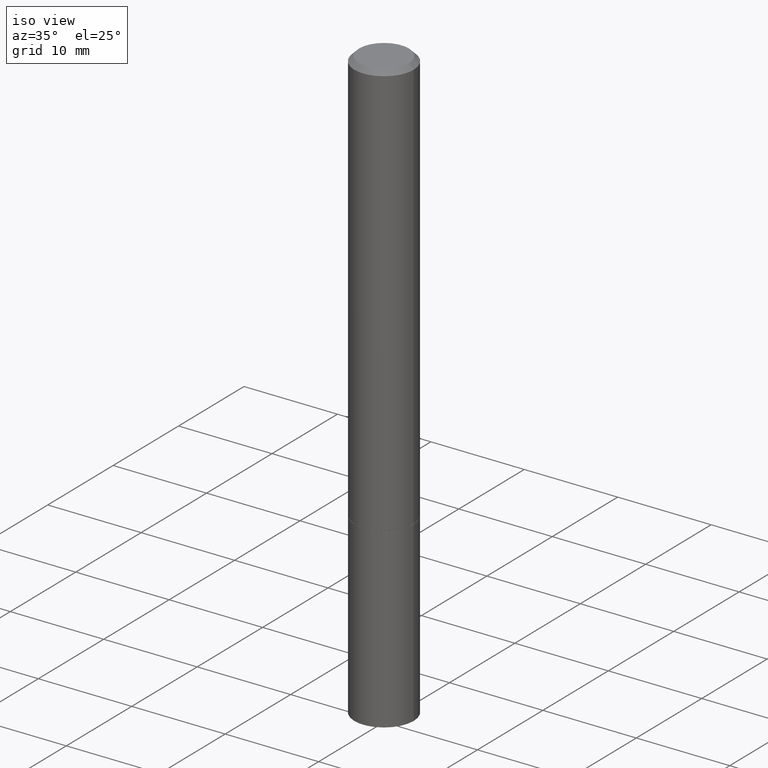
[diagram: clean part render]
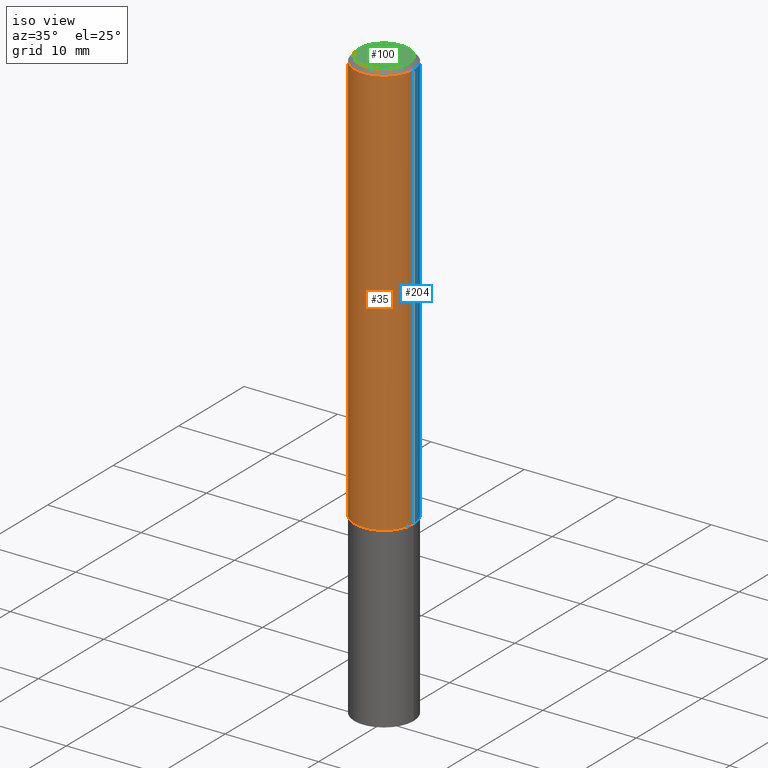
[diagram: same view with three faces highlighted in distinct colors, each labeled with its STEP entity id]
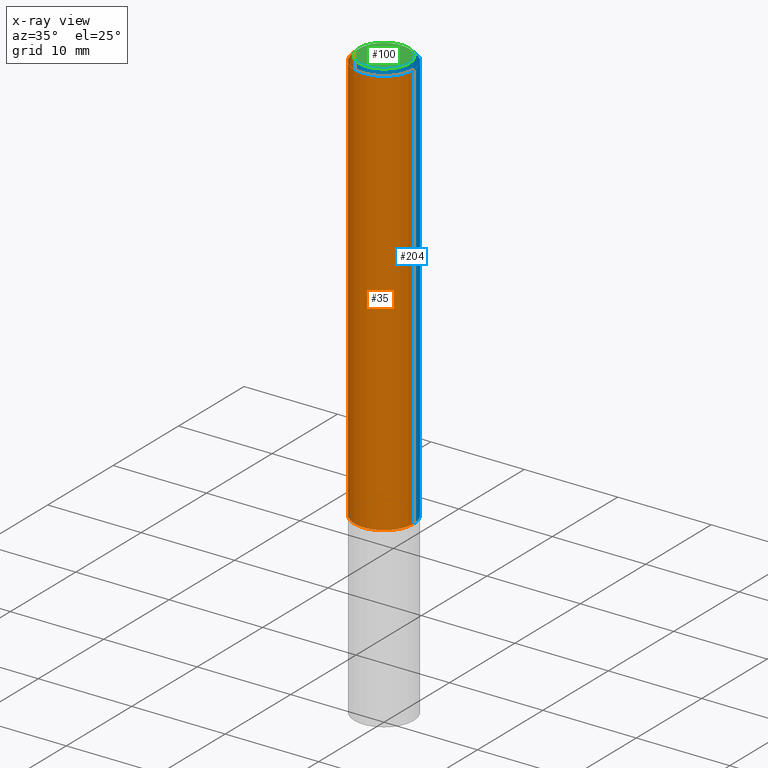
[diagram: x-ray of the same camera — body ghosted, the three highlighted faces saturated]
A machine part, iso view with three faces highlighted in distinct colors.
The next image is the same camera in x-ray (body ghosted, the three faces saturated) — at least one of them is partly hidden behind the body in this view.
Their STEP definitions:

[orange] entity #35 — the highlighted cylindrical surface (edge-blend (fillet) strip) has radius 3.175 mm, axis along (-0, 0, 1).
#10 = AXIS2_PLACEMENT_3D ( 'NONE', #185, #224, #231 ) ;
#14 = CARTESIAN_POINT ( 'NONE',  ( 0.1250000000000000000, -6.979471196347445792E-15, -1.749000000000000110 ) ) ;
#35 = ADVANCED_FACE ( 'NONE', ( #172 ), #125, .T. ) ;
#45 = VECTOR ( 'NONE', #350, 39.37007874015748143 ) ;
#47 = CARTESIAN_POINT ( 'NONE',  ( 0.1249999999999998751, -8.728703347107825500E-16, 6.095220969744913435E-30 ) ) ;
#63 = ORIENTED_EDGE ( 'NONE', *, *, #103, .F. ) ;
#85 = CARTESIAN_POINT ( 'NONE',  ( 0.1249999999999997641, -9.273918764983027713E-16, -0.02000000000000003858 ) ) ;
#103 = EDGE_CURVE ( 'NONE', #302, #151, #273, .T. ) ;
#115 = VERTEX_POINT ( 'NONE', #85 ) ;
#117 = CARTESIAN_POINT ( 'NONE',  ( -0.1250000000000000000, -2.200036824506634488E-15, -1.749000000000000110 ) ) ;
#121 = EDGE_CURVE ( 'NONE', #200, #115, #323, .T. ) ;
#123 = CIRCLE ( 'NONE', #342, 0.1250000000000000000 ) ;
#125 = CYLINDRICAL_SURFACE ( 'NONE', #216, 0.1249999999999998751 ) ;
#131 = DIRECTION ( 'NONE',  ( -2.445468806185136877E-29, 3.491481338843145188E-15, 1.000000000000000000 ) ) ;
#135 = CARTESIAN_POINT ( 'NONE',  ( -0.1249999999999998751, 8.881784197001243449E-16, -6.148668862818626622E-30 ) ) ;
#139 = ORIENTED_EDGE ( 'NONE', *, *, #343, .F. ) ;
#151 = VERTEX_POINT ( 'NONE', #267 ) ;
#172 = FACE_OUTER_BOUND ( 'NONE', #257, .T. ) ;
#174 = DIRECTION ( 'NONE',  ( 1.000000000000000000, -6.982962677686267499E-15, 4.876176775795935793E-29 ) ) ;
#176 = DIRECTION ( 'NONE',  ( -2.445468806185136597E-29, 3.491481338843145583E-15, 1.000000000000000000 ) ) ;
#182 = CIRCLE ( 'NONE', #10, 0.1249999999999997641 ) ;
#185 = CARTESIAN_POINT ( 'NONE',  ( 4.890937612370282792E-31, -6.982962677686303935E-17, -0.02000000000000003858 ) ) ;
#197 = DIRECTION ( 'NONE',  ( 1.000000000000000000, -6.982962677686270655E-15, 0.000000000000000000 ) ) ;
#200 = VERTEX_POINT ( 'NONE', #14 ) ;
#216 = AXIS2_PLACEMENT_3D ( 'NONE', #344, #340, #174 ) ;
#223 = VECTOR ( 'NONE', #131, 39.37007874015748143 ) ;
#224 = DIRECTION ( 'NONE',  ( -2.445468806185136597E-29, 3.491481338843145583E-15, 1.000000000000000000 ) ) ;
#231 = DIRECTION ( 'NONE',  ( 1.000000000000000000, -6.982962677686266711E-15, 0.000000000000000000 ) ) ;
#252 = ORIENTED_EDGE ( 'NONE', *, *, #314, .T. ) ;
#254 = CARTESIAN_POINT ( 'NONE',  ( 4.277124942017804562E-29, -6.106600861636661664E-15, -1.749000000000000110 ) ) ;
#257 = EDGE_LOOP ( 'NONE', ( #63, #252, #261, #139 ) ) ;
#261 = ORIENTED_EDGE ( 'NONE', *, *, #121, .T. ) ;
#267 = CARTESIAN_POINT ( 'NONE',  ( -0.1249999999999997641, 8.030407079339185615E-16, -0.02000000000000003858 ) ) ;
#273 = LINE ( 'NONE', #135, #45 ) ;
#302 = VERTEX_POINT ( 'NONE', #117 ) ;
#314 = EDGE_CURVE ( 'NONE', #302, #200, #123, .T. ) ;
#323 = LINE ( 'NONE', #47, #223 ) ;
#340 = DIRECTION ( 'NONE',  ( -2.445468806185136597E-29, 3.491481338843145583E-15, 1.000000000000000000 ) ) ;
#342 = AXIS2_PLACEMENT_3D ( 'NONE', #254, #176, #197 ) ;
#343 = EDGE_CURVE ( 'NONE', #151, #115, #182, .T. ) ;
#344 = CARTESIAN_POINT ( 'NONE',  ( 0.000000000000000000, 0.000000000000000000, 0.000000000000000000 ) ) ;
#350 = DIRECTION ( 'NONE',  ( -2.445468806185136877E-29, 3.491481338843145188E-15, 1.000000000000000000 ) ) ;

[blue] entity #204 — the highlighted cylindrical surface (edge-blend (fillet) strip) has radius 3.175 mm, axis along (-0, 0, 1).
#9 = ORIENTED_EDGE ( 'NONE', *, *, #103, .T. ) ;
#14 = CARTESIAN_POINT ( 'NONE',  ( 0.1250000000000000000, -6.979471196347445792E-15, -1.749000000000000110 ) ) ;
#34 = ORIENTED_EDGE ( 'NONE', *, *, #284, .T. ) ;
#43 = DIRECTION ( 'NONE',  ( -2.445468806185136597E-29, 3.491481338843145583E-15, 1.000000000000000000 ) ) ;
#45 = VECTOR ( 'NONE', #350, 39.37007874015748143 ) ;
#47 = CARTESIAN_POINT ( 'NONE',  ( 0.1249999999999998751, -8.728703347107825500E-16, 6.095220969744913435E-30 ) ) ;
#52 = CIRCLE ( 'NONE', #101, 0.1249999999999997641 ) ;
#54 = EDGE_CURVE ( 'NONE', #115, #151, #52, .T. ) ;
#65 = ORIENTED_EDGE ( 'NONE', *, *, #54, .F. ) ;
#85 = CARTESIAN_POINT ( 'NONE',  ( 0.1249999999999997641, -9.273918764983027713E-16, -0.02000000000000003858 ) ) ;
#96 = DIRECTION ( 'NONE',  ( 1.000000000000000000, -6.982962677686266711E-15, 0.000000000000000000 ) ) ;
#101 = AXIS2_PLACEMENT_3D ( 'NONE', #347, #43, #96 ) ;
#103 = EDGE_CURVE ( 'NONE', #302, #151, #273, .T. ) ;
#105 = DIRECTION ( 'NONE',  ( -2.445468806185136597E-29, 3.491481338843145583E-15, 1.000000000000000000 ) ) ;
#115 = VERTEX_POINT ( 'NONE', #85 ) ;
#117 = CARTESIAN_POINT ( 'NONE',  ( -0.1250000000000000000, -2.200036824506634488E-15, -1.749000000000000110 ) ) ;
#121 = EDGE_CURVE ( 'NONE', #200, #115, #323, .T. ) ;
#131 = DIRECTION ( 'NONE',  ( -2.445468806185136877E-29, 3.491481338843145188E-15, 1.000000000000000000 ) ) ;
#132 = CARTESIAN_POINT ( 'NONE',  ( 0.000000000000000000, 0.000000000000000000, 0.000000000000000000 ) ) ;
#135 = CARTESIAN_POINT ( 'NONE',  ( -0.1249999999999998751, 8.881784197001243449E-16, -6.148668862818626622E-30 ) ) ;
#138 = DIRECTION ( 'NONE',  ( 1.000000000000000000, -6.982962677686270655E-15, 0.000000000000000000 ) ) ;
#151 = VERTEX_POINT ( 'NONE', #267 ) ;
#168 = CIRCLE ( 'NONE', #234, 0.1250000000000000000 ) ;
#184 = CYLINDRICAL_SURFACE ( 'NONE', #258, 0.1249999999999998751 ) ;
#199 = DIRECTION ( 'NONE',  ( -2.445468806185136597E-29, 3.491481338843145583E-15, 1.000000000000000000 ) ) ;
#200 = VERTEX_POINT ( 'NONE', #14 ) ;
#204 = ADVANCED_FACE ( 'NONE', ( #211 ), #184, .T. ) ;
#211 = FACE_OUTER_BOUND ( 'NONE', #249, .T. ) ;
#212 = DIRECTION ( 'NONE',  ( 1.000000000000000000, -6.982962677686267499E-15, 4.876176775795935793E-29 ) ) ;
#223 = VECTOR ( 'NONE', #131, 39.37007874015748143 ) ;
#234 = AXIS2_PLACEMENT_3D ( 'NONE', #248, #199, #138 ) ;
#248 = CARTESIAN_POINT ( 'NONE',  ( 4.277124942017804562E-29, -6.106600861636661664E-15, -1.749000000000000110 ) ) ;
#249 = EDGE_LOOP ( 'NONE', ( #34, #9, #65, #255 ) ) ;
#255 = ORIENTED_EDGE ( 'NONE', *, *, #121, .F. ) ;
#258 = AXIS2_PLACEMENT_3D ( 'NONE', #132, #105, #212 ) ;
#267 = CARTESIAN_POINT ( 'NONE',  ( -0.1249999999999997641, 8.030407079339185615E-16, -0.02000000000000003858 ) ) ;
#273 = LINE ( 'NONE', #135, #45 ) ;
#284 = EDGE_CURVE ( 'NONE', #200, #302, #168, .T. ) ;
#302 = VERTEX_POINT ( 'NONE', #117 ) ;
#323 = LINE ( 'NONE', #47, #223 ) ;
#347 = CARTESIAN_POINT ( 'NONE',  ( 4.890937612370282792E-31, -6.982962677686303935E-17, -0.02000000000000003858 ) ) ;
#350 = DIRECTION ( 'NONE',  ( -2.445468806185136877E-29, 3.491481338843145188E-15, 1.000000000000000000 ) ) ;

[green] entity #100 — the highlighted planar face has unit normal (0, -0, -1).
#40 = CARTESIAN_POINT ( 'NONE',  ( -0.1049999999999997741, 7.681258945454874055E-16, 4.268512490095161194E-18 ) ) ;
#59 = VERTEX_POINT ( 'NONE', #40 ) ;
#60 = EDGE_LOOP ( 'NONE', ( #309, #288 ) ) ;
#66 = AXIS2_PLACEMENT_3D ( 'NONE', #351, #178, #159 ) ;
#92 = DIRECTION ( 'NONE',  ( 1.000000000000000000, -6.982962677686265922E-15, 4.876206205277404679E-29 ) ) ;
#95 = EDGE_CURVE ( 'NONE', #337, #59, #179, .T. ) ;
#100 = ADVANCED_FACE ( 'NONE', ( #327 ), #157, .F. ) ;
#136 = DIRECTION ( 'NONE',  ( -2.445468806185136597E-29, 3.491481338843145583E-15, 1.000000000000000000 ) ) ;
#157 = PLANE ( 'NONE',  #66 ) ;
#159 = DIRECTION ( 'NONE',  ( -1.000000000000000000, 6.982962677686265922E-15, -4.876176775795935793E-29 ) ) ;
#160 = CIRCLE ( 'NONE', #164, 0.1049999999999997741 ) ;
#164 = AXIS2_PLACEMENT_3D ( 'NONE', #336, #136, #92 ) ;
#178 = DIRECTION ( 'NONE',  ( 2.438088387897960049E-29, -3.491481338843145188E-15, -1.000000000000000000 ) ) ;
#179 = CIRCLE ( 'NONE', #253, 0.1049999999999997741 ) ;
#236 = DIRECTION ( 'NONE',  ( 1.000000000000000000, -6.982962677686265922E-15, 4.876206205277404679E-29 ) ) ;
#253 = AXIS2_PLACEMENT_3D ( 'NONE', #272, #355, #236 ) ;
#271 = EDGE_CURVE ( 'NONE', #59, #337, #160, .T. ) ;
#272 = CARTESIAN_POINT ( 'NONE',  ( -1.043851414335219820E-46, 1.490343170380447200E-32, 4.268512490100411279E-18 ) ) ;
#288 = ORIENTED_EDGE ( 'NONE', *, *, #95, .T. ) ;
#297 = CARTESIAN_POINT ( 'NONE',  ( 0.1049999999999997741, -8.238720831321559881E-16, 4.268512490105855498E-18 ) ) ;
#309 = ORIENTED_EDGE ( 'NONE', *, *, #271, .T. ) ;
#327 = FACE_OUTER_BOUND ( 'NONE', #60, .T. ) ;
#336 = CARTESIAN_POINT ( 'NONE',  ( -1.043851414335219820E-46, 1.490343170380447200E-32, 4.268512490100411279E-18 ) ) ;
#337 = VERTEX_POINT ( 'NONE', #297 ) ;
#351 = CARTESIAN_POINT ( 'NONE',  ( 7.332110811570563480E-16, 0.1049999999999997741, -3.644712843334792919E-16 ) ) ;
#355 = DIRECTION ( 'NONE',  ( -2.445468806185136597E-29, 3.491481338843145583E-15, 1.000000000000000000 ) ) ;